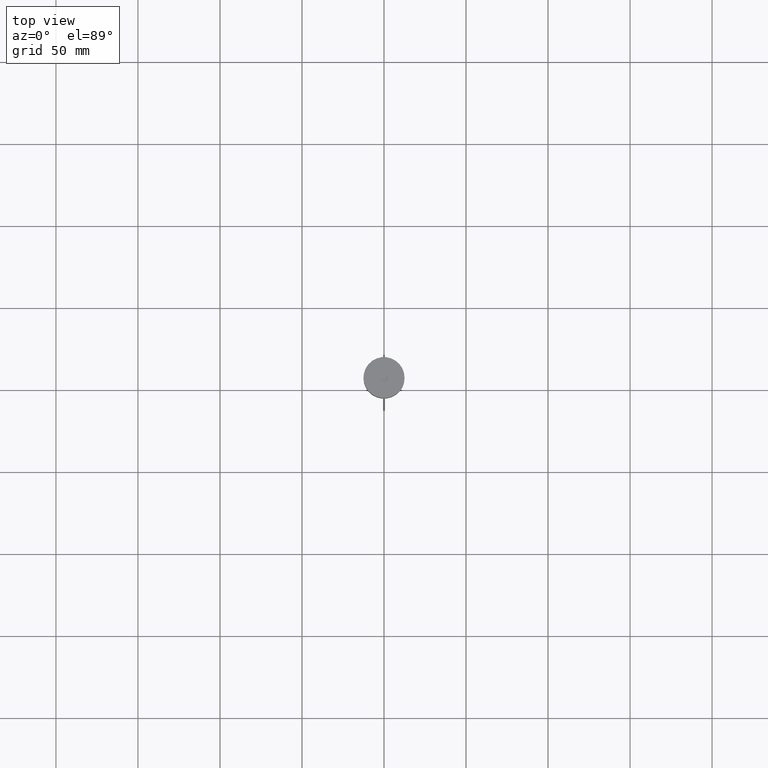
[diagram: clean part render]
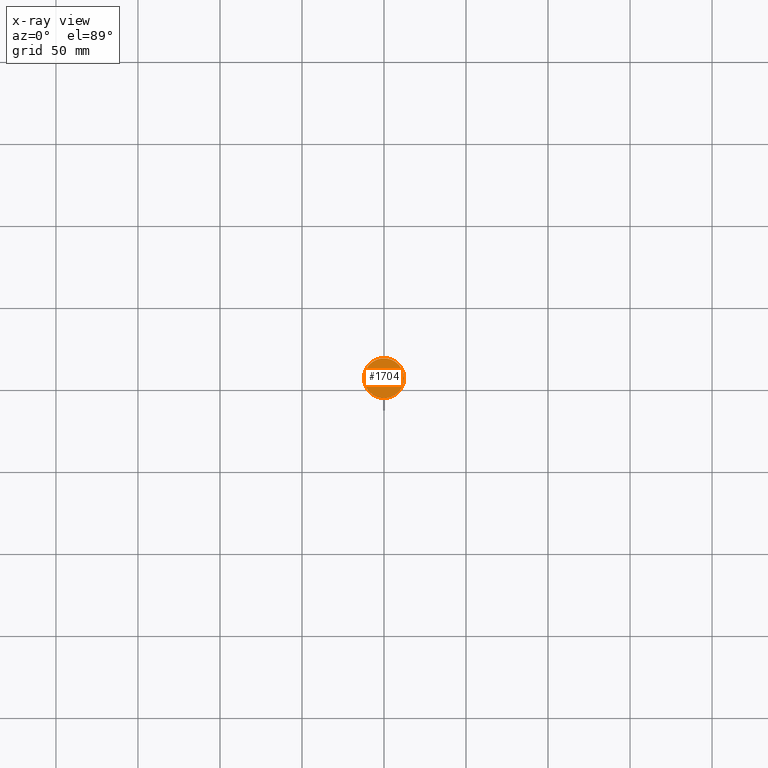
[diagram: x-ray — body ghosted, one internal face saturated and labeled with its STEP entity id]
A machine part, top view, then the same camera in x-ray: the body is ghosted and one INTERNAL B-rep face — a face not visible from any outside direction — is saturated and labeled: STEP entity #1704.
In plain terms, the highlighted planar face has unit normal (0, 0, -1).
Its self-contained STEP definition (entity closure, byte-faithful):
#109 = EDGE_CURVE ( 'NONE', #442, #1766, #702, .T. ) ;
#192 = AXIS2_PLACEMENT_3D ( 'NONE', #1707, #1699, #1865 ) ;
#230 = AXIS2_PLACEMENT_3D ( 'NONE', #1519, #409, #700 ) ;
#314 = EDGE_LOOP ( 'NONE', ( #1040, #1685 ) ) ;
#409 = DIRECTION ( 'NONE',  ( 0.000000000000000000, 0.000000000000000000, -1.000000000000000000 ) ) ;
#442 = VERTEX_POINT ( 'NONE', #870 ) ;
#507 = FACE_OUTER_BOUND ( 'NONE', #314, .T. ) ;
#700 = DIRECTION ( 'NONE',  ( -1.000000000000000000, 0.000000000000000000, -0.000000000000000000 ) ) ;
#702 = CIRCLE ( 'NONE', #1556, 12.20000000000000639 ) ;
#870 = CARTESIAN_POINT ( 'NONE',  ( -12.20000000000000639, 0.000000000000000000, -20.49999999999999645 ) ) ;
#943 = CIRCLE ( 'NONE', #192, 12.20000000000000639 ) ;
#1040 = ORIENTED_EDGE ( 'NONE', *, *, #109, .T. ) ;
#1174 = PLANE ( 'NONE',  #230 ) ;
#1210 = CARTESIAN_POINT ( 'NONE',  ( 12.20000000000000639, 1.512438796946981880E-15, -20.49999999999999645 ) ) ;
#1298 = EDGE_CURVE ( 'NONE', #1766, #442, #943, .T. ) ;
#1519 = CARTESIAN_POINT ( 'NONE',  ( 0.000000000000000000, 0.000000000000000000, -20.49999999999999645 ) ) ;
#1556 = AXIS2_PLACEMENT_3D ( 'NONE', #1711, #1872, #1577 ) ;
#1577 = DIRECTION ( 'NONE',  ( -1.000000000000000000, 0.000000000000000000, 0.000000000000000000 ) ) ;
#1685 = ORIENTED_EDGE ( 'NONE', *, *, #1298, .T. ) ;
#1699 = DIRECTION ( 'NONE',  ( -0.000000000000000000, -0.000000000000000000, 1.000000000000000000 ) ) ;
#1704 = ADVANCED_FACE ( 'NONE', ( #507 ), #1174, .F. ) ;
#1707 = CARTESIAN_POINT ( 'NONE',  ( 0.000000000000000000, 0.000000000000000000, -20.49999999999999645 ) ) ;
#1711 = CARTESIAN_POINT ( 'NONE',  ( 0.000000000000000000, 0.000000000000000000, -20.49999999999999645 ) ) ;
#1766 = VERTEX_POINT ( 'NONE', #1210 ) ;
#1865 = DIRECTION ( 'NONE',  ( -1.000000000000000000, 0.000000000000000000, 0.000000000000000000 ) ) ;
#1872 = DIRECTION ( 'NONE',  ( -0.000000000000000000, -0.000000000000000000, 1.000000000000000000 ) ) ;